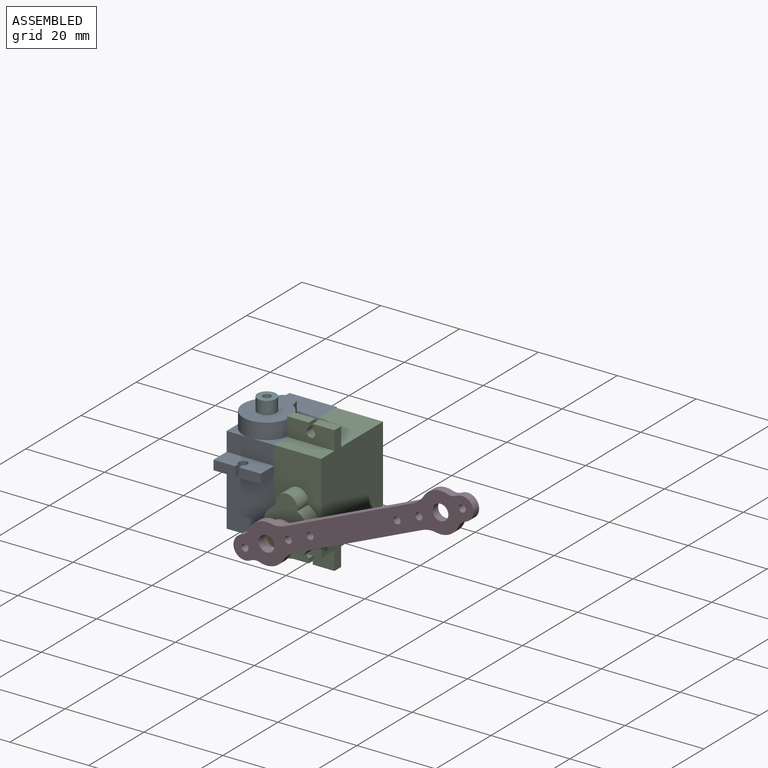
[diagram: assembled view]
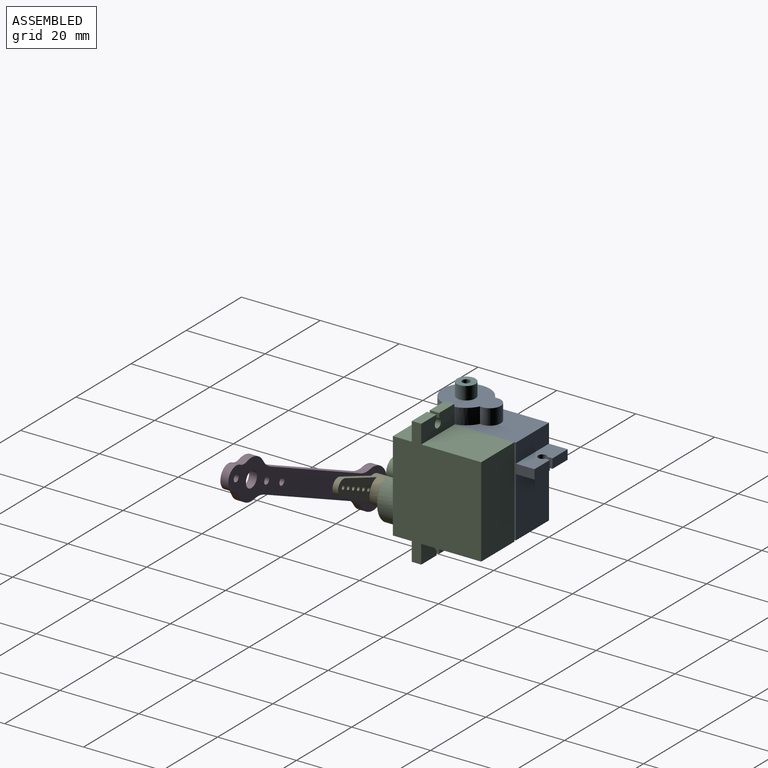
[diagram: assembled view, second angle]
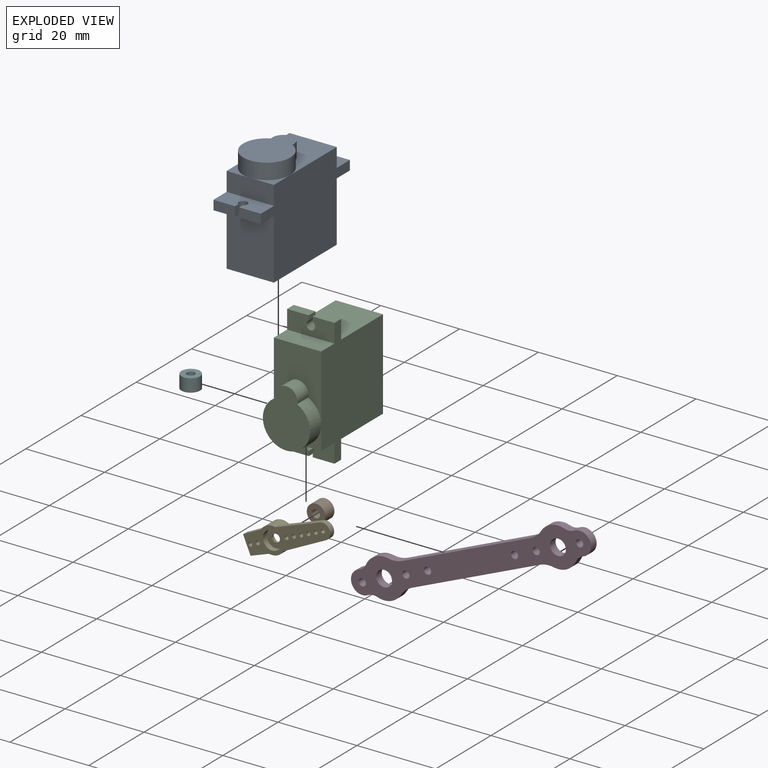
[diagram: exploded view]
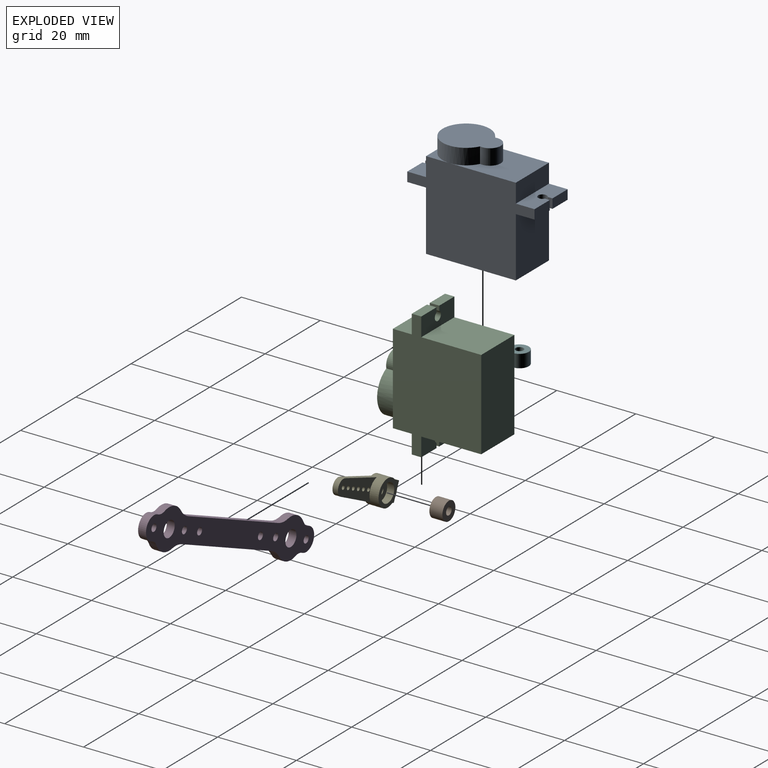
[diagram: exploded view, second angle]
ASSEMBLY  parts=6 mates=7
PART A: 27 faces, bbox 12x32.3x26.4 mm
  f0: plane 16.78x12mm, normal (0,0,1), area 131.8mm2, adj f4,f6,f21,f24,f25
  f1: plane 6x6mm, normal (0,0,1), area 7.7mm2, adj f6,f22,f24
  f2: plane 12x4.75mm, normal (0,0,1), area 52.1mm2, adj f4,f6,f14,f15,f16,f17,f18,f22
  f3: plane 15.2x12mm, normal (0,-1,0), area 182.4mm2, adj f4,f6,f7,f20
  f4: plane 32.28x22.4mm, normal (1,0,0), area 533.1mm2, adj f0,f2,f3,f5,f7,f8,f9,f18
  f5: plane 15.2x12mm, normal (0,1,0), area 182.4mm2, adj f4,f6,f7,f8
  f6: plane 32.28x22.4mm, normal (-1,0,0), area 533.1mm2, adj f0,f1,f2,f3,f5,f7,f8,f13
  f7: plane 22.78x12mm, normal (0,0,-1), area 273.4mm2, adj f3,f4,f5,f6
  f8: plane 12x4.75mm, normal (0,0,-1), area 52.1mm2, adj f4,f5,f6,f9,f10,f11,f12,f13
  f9: plane 5.5x2.4mm, normal (0,1,0), area 13.2mm2, adj f4,f8,f10,f19
  f10: plane 2.4x1.22mm, normal (-1,0,0), area 2.9mm2, adj f8,f9,f11,f19
  f11: cylinder r=1.1mm len=2.4mm, axis (0,0,-1), area 14.1mm2, adj f8,f10,f12,f19
  f12: plane 2.4x1.22mm, normal (1,0,0), area 2.9mm2, adj f8,f11,f13,f19
  f13: plane 5.5x2.4mm, normal (0,1,0), area 13.2mm2, adj f6,f8,f12,f19
  f14: plane 5.5x2.4mm, normal (0,-1,0), area 13.2mm2, adj f2,f6,f15,f20
  f15: plane 2.4x1.22mm, normal (1,0,0), area 2.9mm2, adj f2,f14,f16,f20
  f16: cylinder r=1.1mm len=2.4mm, axis (0,0,-1), area 14.1mm2, adj f2,f15,f17,f20
  f17: plane 2.4x1.22mm, normal (-1,0,0), area 2.9mm2, adj f2,f16,f18,f20
  f18: plane 5.5x2.4mm, normal (0,-1,0), area 13.2mm2, adj f2,f4,f17,f20
  f19: plane 12x4.75mm, normal (0,0,1), area 52.1mm2, adj f4,f6,f9,f10,f11,f12,f13,f21
  f20: plane 12x4.75mm, normal (0,0,-1), area 52.1mm2, adj f3,f4,f6,f14,f15,f16,f17,f18
  f21: plane 12x4.8mm, normal (0,1,0), area 57.6mm2, adj f0,f4,f6,f19
  f22: plane 12x4.8mm, normal (0,-1,0), area 57.6mm2, adj f1,f2,f4,f6,f23
  f23: plane 6x6mm, normal (0,0,1), area 7.7mm2, adj f4,f22,f24
  f24: cylinder r=6mm len=12mm, axis (0,0,-1), area 128.6mm2, adj f0,f1,f23,f25,f26
  f25: cylinder r=2.75mm len=5.5mm, axis (0,0,-1), area 39.6mm2, adj f0,f24,f26
  f26: plane 14.75x12mm, normal (0,0,1), area 126.1mm2, adj f24,f25
PART B: 4 faces, bbox 4.7x4.7x3.3 mm
  f0: cylinder r=2.35mm len=4.7mm, axis (0,0,-1), area 48.7mm2, adj f1,f2
  f1: plane 4.7x4.7mm, normal (0,0,1), area 14.2mm2, adj f0,f3
  f2: plane 4.7x4.7mm, normal (0,0,-1), area 14.2mm2, adj f0,f3
  f3: cylinder r=1mm len=3.3mm, axis (0,0,1), area 20.7mm2, adj f1,f2
PART C: same geometry as A
PART D: 26 faces, bbox 65.8x10x2 mm
  f0: cylinder r=3mm len=2.33mm, axis (0,0,-1), area 5.1mm2, adj f1,f16,f24,f25
  f1: cylinder r=5mm len=6.27mm, axis (0,0,-1), area 13.6mm2, adj f0,f2,f24,f25
  f2: cylinder r=6mm len=3.45mm, axis (0,0,-1), area 7.4mm2, adj f1,f3,f24,f25
  f3: plane 35.35x2mm, normal (0,-1,0), area 70.7mm2, adj f2,f4,f24,f25
  f4: cylinder r=6mm len=3.45mm, axis (0,0,-1), area 7.4mm2, adj f3,f5,f24,f25
  f5: cylinder r=5mm len=6.27mm, axis (0,0,-1), area 13.6mm2, adj f4,f6,f24,f25
  f6: cylinder r=3mm len=2.33mm, axis (0,0,-1), area 5.1mm2, adj f5,f7,f24,f25
  f7: cylinder r=2.9mm len=5.8mm, axis (0,0,-1), area 19.3mm2, adj f6,f8,f24,f25
  f8: cylinder r=3mm len=2.33mm, axis (0,0,-1), area 5.1mm2, adj f7,f9,f24,f25
  f9: cylinder r=5mm len=6.27mm, axis (0,0,-1), area 13.6mm2, adj f8,f10,f24,f25
  f10: cylinder r=6mm len=3.45mm, axis (0,0,-1), area 7.4mm2, adj f9,f11,f24,f25
  f11: plane 35.35x2mm, normal (0,1,0), area 70.7mm2, adj f10,f12,f24,f25
  f12: cylinder r=6mm len=3.45mm, axis (0,0,-1), area 7.4mm2, adj f11,f13,f24,f25
  f13: cylinder r=5mm len=6.27mm, axis (0,0,-1), area 13.6mm2, adj f12,f14,f24,f25
  f14: cylinder r=3mm len=2.33mm, axis (0,0,-1), area 5.1mm2, adj f13,f16,f24,f25
  f15: cylinder r=0.9mm len=2mm, axis (0,0,-1), area 11.3mm2, adj f24,f25
  f16: cylinder r=2.9mm len=5.8mm, axis (0,0,-1), area 19.3mm2, adj f0,f14,f24,f25
  f17: cylinder r=2mm len=4mm, axis (0,0,-1), area 25.1mm2, adj f24,f25
  f18: cylinder r=0.9mm len=2mm, axis (0,0,-1), area 11.3mm2, adj f24,f25
  f19: cylinder r=0.9mm len=2mm, axis (0,0,-1), area 11.3mm2, adj f24,f25
  f20: cylinder r=0.9mm len=2mm, axis (0,0,-1), area 11.3mm2, adj f24,f25
  f21: cylinder r=0.9mm len=2mm, axis (0,0,-1), area 11.3mm2, adj f24,f25
  f22: cylinder r=2mm len=4mm, axis (0,0,-1), area 25.1mm2, adj f24,f25
  f23: cylinder r=0.9mm len=2mm, axis (0,0,-1), area 11.3mm2, adj f24,f25
  f24: plane 65.8x10mm, normal (0,0,1), area 392.7mm2, adj f0,f1,f2,f3,f4,f5,f6,f7
  f25: plane 65.8x10mm, normal (0,0,-1), area 392.7mm2, adj f0,f1,f2,f3,f4,f5,f6,f7
PART E: 24 faces, bbox 22.9x6.7x3.7 mm
  f0: cylinder r=1mm len=2mm, axis (0,0,1), area 3.1mm2, adj f20,f23
  f1: plane 5.4x5.01mm, normal (0,0,-1), area 18.9mm2, adj f2,f3,f4,f5,f8,f17
  f2: plane 5.01x1.4mm, normal (-0.06,1,0), area 7mm2, adj f1,f3,f5,f18
  f3: plane 4.82x1.4mm, normal (-1,0,0), area 6.7mm2, adj f1,f2,f4,f18
  f4: plane 5.01x1.4mm, normal (-0.06,-1,0), area 7mm2, adj f1,f3,f5,f18
  f5: cylinder r=3.35mm len=6.7mm, axis (0,0,-1), area 60.3mm2, adj f1,f2,f4,f6,f15,f18,f19,f21
  f6: plane 12.02x1.4mm, normal (0.06,-1,0), area 16.9mm2, adj f5,f7,f18,f19
  f7: cylinder r=2mm len=4mm, axis (0,0,-1), area 8.5mm2, adj f6,f15,f18,f19
  f8: cylinder r=0.5mm len=1.4mm, axis (0,0,-1), area 4.4mm2, adj f1,f18
  f9: cylinder r=0.5mm len=1.4mm, axis (0,0,-1), area 4.4mm2, adj f18,f19
  f10: cylinder r=0.5mm len=1.4mm, axis (0,0,-1), area 4.4mm2, adj f18,f19
  f11: cylinder r=0.5mm len=1.4mm, axis (0,0,-1), area 4.4mm2, adj f18,f19
  f12: cylinder r=0.5mm len=1.4mm, axis (0,0,-1), area 4.4mm2, adj f18,f19
  f13: cylinder r=0.5mm len=1.4mm, axis (0,0,-1), area 4.4mm2, adj f18,f19
  f14: cylinder r=0.5mm len=1.4mm, axis (0,0,-1), area 4.4mm2, adj f18,f19
  f15: plane 12.02x1.4mm, normal (0.06,1,0), area 16.9mm2, adj f5,f7,f18,f19
  f16: cylinder r=2.35mm len=4.7mm, axis (0,0,-1), area 20.7mm2, adj f18,f20
  f17: cylinder r=0.5mm len=1.4mm, axis (0,0,-1), area 4.4mm2, adj f1,f18
  f18: plane 22.88x6.7mm, normal (0,0,1), area 89.2mm2, adj f2,f3,f4,f5,f6,f7,f8,f9
  f19: plane 13.9x5.4mm, normal (0,0,-1), area 52.4mm2, adj f5,f6,f7,f9,f10,f11,f12,f13
  f20: plane 4.7x4.7mm, normal (0,0,1), area 14.2mm2, adj f0,f16
  f21: plane 6.7x6.7mm, normal (0,0,-1), area 17.9mm2, adj f5,f22
  f22: cylinder r=2.35mm len=4.7mm, axis (0,0,-1), area 26.6mm2, adj f21,f23
  f23: plane 4.7x4.7mm, normal (0,0,-1), area 14.2mm2, adj f0,f22
PART F: same geometry as B
PLACE A t=(-29.39,-8.14,-1.6)mm fixed
PLACE B rot(axis=(1,0,0),90deg) t=(-17.39,2.87,9.41)mm
PLACE C rot(axis=(1,0,0),90deg) t=(-17.39,2.87,9.41)mm
PLACE D rot(axis=(-0.14,0.7,0.7),163.6deg) t=(4.66,-30.73,13.5)mm
PLACE E rot(axis=(0.96,-0.2,0.2),92.3deg) t=(-17.39,-27.33,4.02)mm
PLACE F t=(-29.39,-8.14,-1.6)mm
MATE revolute D.f21 <-> E.f12  axis (0,-1,0) through (-6.37,-28.73,8.76)mm
MATE planar A.f0 <-> C.f5  axis (0,0,1) through (-23.39,-5.14,20.8)mm
MATE planar D.f24 <-> E.f18  axis (0,1,0) through (4.66,-28.73,13.5)mm
MATE revolute E.f0 <-> B.f0  axis (0,1,0) through (-17.39,-26.83,4.02)mm
MATE planar C.f6 <-> A.f4  axis (-1,0,0) through (-23.39,-8.55,9.41)mm
MATE planar C.f0 <-> A.f3  axis (0,-1,0) through (-23.39,-19.53,12.41)mm
MATE cylindrical D.f5 <-> E.f0  axis (0,-1,0) through (-17.39,-28.73,4.02)mm
